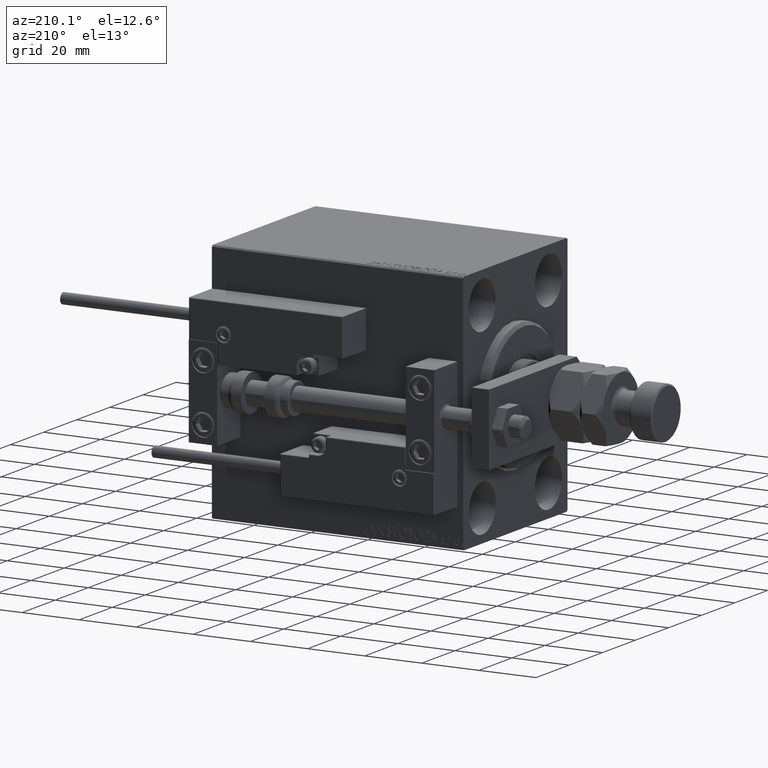
[diagram: clean part render]
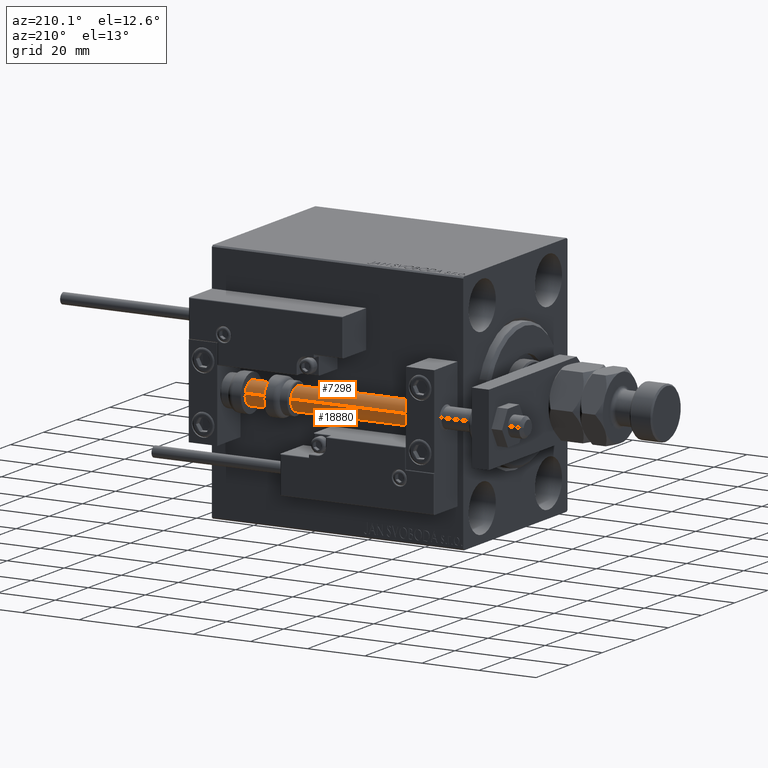
[diagram: same view with one multi-face feature highlighted, each face labeled with its STEP entity id]
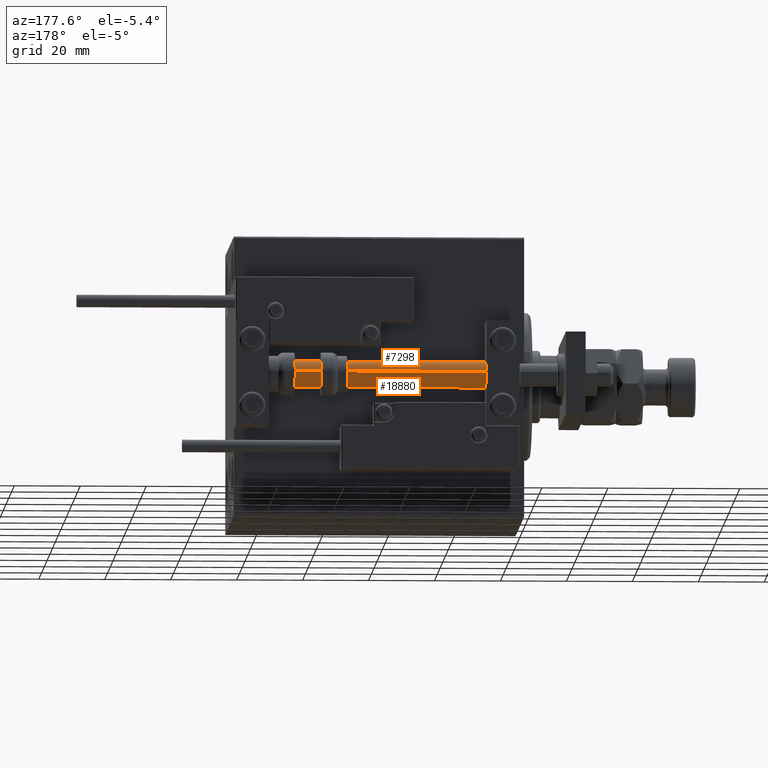
[diagram: same view with one multi-face feature highlighted, each face labeled with its STEP entity id]
A machine part, auxiliary view. The highlighted faces form ONE feature: a constant-radius fillet chain: 2 tangent blend faces with common blend radius 4 mm. The faces share edges in the B-rep.
A second angle (auxiliary view) of the same feature is appended — it is thin or edge-on in the first view.
Their STEP definitions:
[1] entity #7298 (Cylinder):
#2385 = LINE ( 'NONE', #22533, #17872 ) ;
#3814 = VERTEX_POINT ( 'NONE', #17855 ) ;
#4294 = DIRECTION ( 'NONE',  ( -0.000000000000000000, -0.000000000000000000, -1.000000000000000000 ) ) ;
#6938 = DIRECTION ( 'NONE',  ( 1.000000000000000000, 0.000000000000000000, 0.000000000000000000 ) ) ;
#7298 = ADVANCED_FACE ( 'NONE', ( #20431 ), #36397, .T. ) ;
#10261 = VERTEX_POINT ( 'NONE', #43245 ) ;
#11542 = CIRCLE ( 'NONE', #39905, 4.000000000000000000 ) ;
#11705 = ORIENTED_EDGE ( 'NONE', *, *, #32664, .F. ) ;
#12555 = DIRECTION ( 'NONE',  ( 1.000000000000000000, 0.000000000000000000, 0.000000000000000000 ) ) ;
#12809 = CARTESIAN_POINT ( 'NONE',  ( 0.000000000000000000, 0.000000000000000000, 2.000000000000029310 ) ) ;
#14682 = EDGE_LOOP ( 'NONE', ( #11705, #48605, #15398, #35418 ) ) ;
#15398 = ORIENTED_EDGE ( 'NONE', *, *, #41810, .T. ) ;
#17855 = CARTESIAN_POINT ( 'NONE',  ( -4.000000000000000000, 0.000000000000000000, 88.00000000000000000 ) ) ;
#17872 = VECTOR ( 'NONE', #35855, 1000.000000000000000 ) ;
#20431 = FACE_OUTER_BOUND ( 'NONE', #14682, .T. ) ;
#21845 = AXIS2_PLACEMENT_3D ( 'NONE', #12809, #24323, #12555 ) ;
#21883 = DIRECTION ( 'NONE',  ( 0.000000000000000000, 0.000000000000000000, 1.000000000000000000 ) ) ;
#22533 = CARTESIAN_POINT ( 'NONE',  ( -4.000000000000000000, 0.000000000000000000, 88.00000000000000000 ) ) ;
#23636 = VERTEX_POINT ( 'NONE', #32238 ) ;
#24323 = DIRECTION ( 'NONE',  ( -0.000000000000000000, -0.000000000000000000, 1.000000000000000000 ) ) ;
#26289 = AXIS2_PLACEMENT_3D ( 'NONE', #44482, #49442, #36659 ) ;
#32167 = CARTESIAN_POINT ( 'NONE',  ( 4.000000000000000000, 4.898587196589412829E-16, 2.000000000000029310 ) ) ;
#32238 = CARTESIAN_POINT ( 'NONE',  ( -4.000000000000000000, 0.000000000000000000, 2.000000000000029310 ) ) ;
#32664 = EDGE_CURVE ( 'NONE', #10261, #3814, #11542, .T. ) ;
#35418 = ORIENTED_EDGE ( 'NONE', *, *, #48691, .F. ) ;
#35855 = DIRECTION ( 'NONE',  ( -0.000000000000000000, -0.000000000000000000, -1.000000000000000000 ) ) ;
#36397 = CYLINDRICAL_SURFACE ( 'NONE', #26289, 4.000000000000000000 ) ;
#36500 = CARTESIAN_POINT ( 'NONE',  ( 4.000000000000000000, 4.898587196589412829E-16, 88.00000000000000000 ) ) ;
#36659 = DIRECTION ( 'NONE',  ( -1.000000000000000000, 0.000000000000000000, 0.000000000000000000 ) ) ;
#37902 = VECTOR ( 'NONE', #4294, 1000.000000000000000 ) ;
#39905 = AXIS2_PLACEMENT_3D ( 'NONE', #41767, #21883, #6938 ) ;
#40684 = LINE ( 'NONE', #36500, #37902 ) ;
#41767 = CARTESIAN_POINT ( 'NONE',  ( 0.000000000000000000, 0.000000000000000000, 88.00000000000000000 ) ) ;
#41810 = EDGE_CURVE ( 'NONE', #48728, #23636, #42704, .T. ) ;
#42704 = CIRCLE ( 'NONE', #21845, 4.000000000000000000 ) ;
#43245 = CARTESIAN_POINT ( 'NONE',  ( 4.000000000000000000, 4.898587196589412829E-16, 88.00000000000000000 ) ) ;
#44482 = CARTESIAN_POINT ( 'NONE',  ( 0.000000000000000000, 0.000000000000000000, 88.00000000000000000 ) ) ;
#46870 = EDGE_CURVE ( 'NONE', #10261, #48728, #40684, .T. ) ;
#48605 = ORIENTED_EDGE ( 'NONE', *, *, #46870, .T. ) ;
#48691 = EDGE_CURVE ( 'NONE', #3814, #23636, #2385, .T. ) ;
#48728 = VERTEX_POINT ( 'NONE', #32167 ) ;
#49442 = DIRECTION ( 'NONE',  ( -0.000000000000000000, -0.000000000000000000, -1.000000000000000000 ) ) ;
[2] entity #18880 (Cylinder):
#2385 = LINE ( 'NONE', #22533, #17872 ) ;
#3814 = VERTEX_POINT ( 'NONE', #17855 ) ;
#3949 = EDGE_LOOP ( 'NONE', ( #50849, #22958, #45453, #32979 ) ) ;
#4294 = DIRECTION ( 'NONE',  ( -0.000000000000000000, -0.000000000000000000, -1.000000000000000000 ) ) ;
#4351 = DIRECTION ( 'NONE',  ( -0.000000000000000000, -0.000000000000000000, 1.000000000000000000 ) ) ;
#4757 = DIRECTION ( 'NONE',  ( -0.000000000000000000, -0.000000000000000000, -1.000000000000000000 ) ) ;
#6604 = CIRCLE ( 'NONE', #21658, 4.000000000000000000 ) ;
#10261 = VERTEX_POINT ( 'NONE', #43245 ) ;
#12481 = CARTESIAN_POINT ( 'NONE',  ( 0.000000000000000000, 0.000000000000000000, 2.000000000000029310 ) ) ;
#12725 = DIRECTION ( 'NONE',  ( 1.000000000000000000, 0.000000000000000000, 0.000000000000000000 ) ) ;
#16269 = CARTESIAN_POINT ( 'NONE',  ( 0.000000000000000000, 0.000000000000000000, 88.00000000000000000 ) ) ;
#17855 = CARTESIAN_POINT ( 'NONE',  ( -4.000000000000000000, 0.000000000000000000, 88.00000000000000000 ) ) ;
#17872 = VECTOR ( 'NONE', #35855, 1000.000000000000000 ) ;
#18880 = ADVANCED_FACE ( 'NONE', ( #19426 ), #35378, .T. ) ;
#19178 = CIRCLE ( 'NONE', #39126, 4.000000000000000000 ) ;
#19426 = FACE_OUTER_BOUND ( 'NONE', #3949, .T. ) ;
#19597 = EDGE_CURVE ( 'NONE', #23636, #48728, #19178, .T. ) ;
#21658 = AXIS2_PLACEMENT_3D ( 'NONE', #33128, #40989, #12725 ) ;
#22533 = CARTESIAN_POINT ( 'NONE',  ( -4.000000000000000000, 0.000000000000000000, 88.00000000000000000 ) ) ;
#22958 = ORIENTED_EDGE ( 'NONE', *, *, #36190, .F. ) ;
#23636 = VERTEX_POINT ( 'NONE', #32238 ) ;
#28430 = DIRECTION ( 'NONE',  ( 1.000000000000000000, 0.000000000000000000, 0.000000000000000000 ) ) ;
#32167 = CARTESIAN_POINT ( 'NONE',  ( 4.000000000000000000, 4.898587196589412829E-16, 2.000000000000029310 ) ) ;
#32238 = CARTESIAN_POINT ( 'NONE',  ( -4.000000000000000000, 0.000000000000000000, 2.000000000000029310 ) ) ;
#32979 = ORIENTED_EDGE ( 'NONE', *, *, #19597, .T. ) ;
#33128 = CARTESIAN_POINT ( 'NONE',  ( 0.000000000000000000, 0.000000000000000000, 88.00000000000000000 ) ) ;
#35378 = CYLINDRICAL_SURFACE ( 'NONE', #48370, 4.000000000000000000 ) ;
#35855 = DIRECTION ( 'NONE',  ( -0.000000000000000000, -0.000000000000000000, -1.000000000000000000 ) ) ;
#36190 = EDGE_CURVE ( 'NONE', #3814, #10261, #6604, .T. ) ;
#36500 = CARTESIAN_POINT ( 'NONE',  ( 4.000000000000000000, 4.898587196589412829E-16, 88.00000000000000000 ) ) ;
#37902 = VECTOR ( 'NONE', #4294, 1000.000000000000000 ) ;
#39126 = AXIS2_PLACEMENT_3D ( 'NONE', #12481, #4351, #28430 ) ;
#40684 = LINE ( 'NONE', #36500, #37902 ) ;
#40989 = DIRECTION ( 'NONE',  ( 0.000000000000000000, 0.000000000000000000, 1.000000000000000000 ) ) ;
#43245 = CARTESIAN_POINT ( 'NONE',  ( 4.000000000000000000, 4.898587196589412829E-16, 88.00000000000000000 ) ) ;
#44777 = DIRECTION ( 'NONE',  ( -1.000000000000000000, 0.000000000000000000, 0.000000000000000000 ) ) ;
#45453 = ORIENTED_EDGE ( 'NONE', *, *, #48691, .T. ) ;
#46870 = EDGE_CURVE ( 'NONE', #10261, #48728, #40684, .T. ) ;
#48370 = AXIS2_PLACEMENT_3D ( 'NONE', #16269, #4757, #44777 ) ;
#48691 = EDGE_CURVE ( 'NONE', #3814, #23636, #2385, .T. ) ;
#48728 = VERTEX_POINT ( 'NONE', #32167 ) ;
#50849 = ORIENTED_EDGE ( 'NONE', *, *, #46870, .F. ) ;